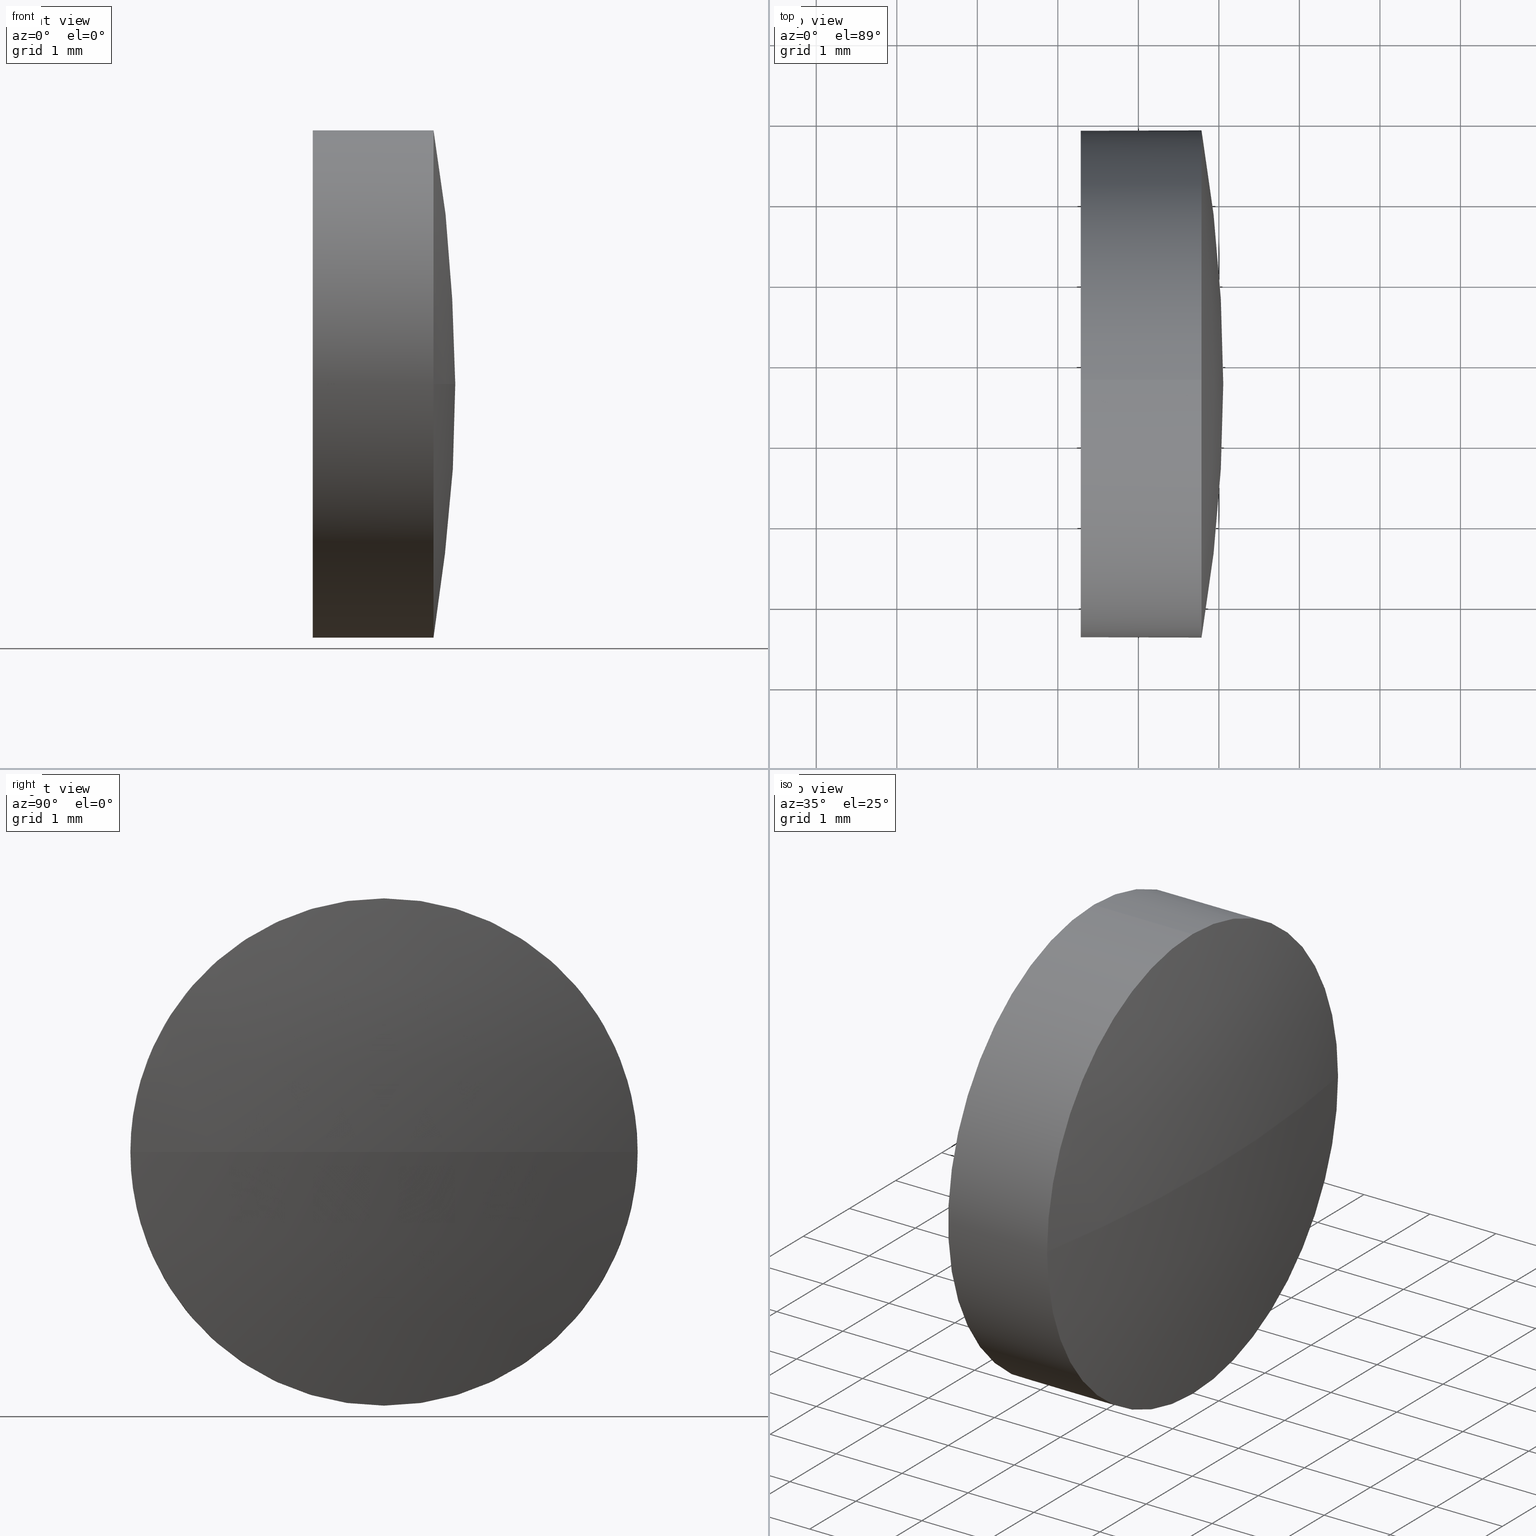
[diagram: canonical four-view strip — front | top / right | iso, engineering-drawing reading convention]
A machine part, canonical four-view strip (front | top / right | iso — engineering-drawing reading convention). The complete STEP part file that produces these views, byte-faithful:
ISO-10303-21;
HEADER;
FILE_DESCRIPTION (( 'STEP AP214' ),
    '1' );
FILE_NAME ('100354.STEP',
    '2019-06-03T04:02:27',
    ( '' ),
    ( '' ),
    'SwSTEP 2.0',
    'SolidWorks 2016',
    '' );
FILE_SCHEMA (( 'AUTOMOTIVE_DESIGN' ));
ENDSEC;

DATA;
#1 = ORIENTED_EDGE ( 'NONE', *, *, #84, .T. ) ;
#2 = CIRCLE ( 'NONE', #60, 3.149999999999999900 ) ;
#3 = FACE_OUTER_BOUND ( 'NONE', #4, .T. ) ;
#4 = EDGE_LOOP ( 'NONE', ( #1, #29, #98, #81, #142 ) ) ;
#5 = ORIENTED_EDGE ( 'NONE', *, *, #44, .T. ) ;
#6 = AXIS2_PLACEMENT_3D ( 'NONE', #137, #159, #149 ) ;
#7 = DIRECTION ( 'NONE',  ( 0.0000000000000000000, 0.0000000000000000000, 1.000000000000000000 ) ) ;
#8 = CARTESIAN_POINT ( 'NONE',  ( 443.4237683568735000, 32.74152775011270900, 0.0000000000000000000 ) ) ;
#9 = ORIENTED_EDGE ( 'NONE', *, *, #172, .F. ) ;
#10 = ORIENTED_EDGE ( 'NONE', *, *, #96, .F. ) ;
#11 = EDGE_CURVE ( 'NONE', #151, #38, #21, .T. ) ;
#12 = DIRECTION ( 'NONE',  ( -1.000000000000000000, -0.0000000000000000000, -0.0000000000000000000 ) ) ;
#13 = APPLICATION_CONTEXT ( 'automotive_design' ) ;
#14 = FILL_AREA_STYLE ('',( #40 ) ) ;
#15 = UNCERTAINTY_MEASURE_WITH_UNIT (LENGTH_MEASURE( 1.000000000000000100E-005 ), #154, 'distance_accuracy_value', 'NONE');
#16 = DIRECTION ( 'NONE',  ( 0.0000000000000000000, -1.000000000000000000, 0.0000000000000000000 ) ) ;
#17 = ORIENTED_EDGE ( 'NONE', *, *, #103, .T. ) ;
#18 = FACE_OUTER_BOUND ( 'NONE', #166, .T. ) ;
#19 = PRODUCT_DEFINITION_CONTEXT ( 'detailed design', #156, 'design' ) ;
#20 =( NAMED_UNIT ( * ) SI_UNIT ( $, .STERADIAN. ) SOLID_ANGLE_UNIT ( ) );
#21 = CIRCLE ( 'NONE', #115, 18.51000000000007600 ) ;
#22 = CARTESIAN_POINT ( 'NONE',  ( 444.2844064456223800, 32.74152775011270900, 0.0000000000000000000 ) ) ;
#23 = VERTEX_POINT ( 'NONE', #55 ) ;
#24 = DIRECTION ( 'NONE',  ( 0.0000000000000000000, 0.0000000000000000000, 1.000000000000000000 ) ) ;
#25 = CARTESIAN_POINT ( 'NONE',  ( 0.0000000000000000000, 0.0000000000000000000, 0.0000000000000000000 ) ) ;
#26 = AXIS2_PLACEMENT_3D ( 'NONE', #30, #100, #145 ) ;
#27 = PRODUCT_DEFINITION ( 'δ֪', '', #36, #19 ) ;
#28 = SURFACE_SIDE_STYLE ('',( #31 ) ) ;
#29 = ORIENTED_EDGE ( 'NONE', *, *, #96, .T. ) ;
#30 = CARTESIAN_POINT ( 'NONE',  ( 427.5444064456223100, 32.74152775011280200, 0.0000000000000000000 ) ) ;
#31 = SURFACE_STYLE_FILL_AREA ( #14 ) ;
#32 = CARTESIAN_POINT ( 'NONE',  ( 427.5444064456223100, 32.74152775011280200, 0.0000000000000000000 ) ) ;
#33 = CARTESIAN_POINT ( 'NONE',  ( 444.2844064456223800, 32.74152775011270900, 0.0000000000000000000 ) ) ;
#34 = SURFACE_STYLE_FILL_AREA ( #148 ) ;
#35 = FACE_OUTER_BOUND ( 'NONE', #157, .T. ) ;
#36 = PRODUCT_DEFINITION_FORMATION_WITH_SPECIFIED_SOURCE ( '�κ�', '', #167, .NOT_KNOWN. ) ;
#37 = ORIENTED_EDGE ( 'NONE', *, *, #75, .T. ) ;
#38 = VERTEX_POINT ( 'NONE', #134 ) ;
#39 = CARTESIAN_POINT ( 'NONE',  ( 445.7844064456223800, 32.74152775011270900, 0.0000000000000000000 ) ) ;
#40 = FILL_AREA_STYLE_COLOUR ( '', #71 ) ;
#41 = DIRECTION ( 'NONE',  ( -1.000000000000000000, -0.0000000000000000000, -0.0000000000000000000 ) ) ;
#42 = ORIENTED_EDGE ( 'NONE', *, *, #103, .F. ) ;
#43 = VECTOR ( 'NONE', #74, 1000.000000000000000 ) ;
#44 = EDGE_CURVE ( 'NONE', #133, #86, #2, .T. ) ;
#45 = UNCERTAINTY_MEASURE_WITH_UNIT (LENGTH_MEASURE( 1.000000000000000100E-005 ), #89, 'distance_accuracy_value', 'NONE');
#46 = ORIENTED_EDGE ( 'NONE', *, *, #65, .T. ) ;
#47 = SURFACE_STYLE_USAGE ( .BOTH. , #53 ) ;
#48 = LINE ( 'NONE', #161, #43 ) ;
#49 = CARTESIAN_POINT ( 'NONE',  ( 445.7844064456223800, 32.74152775011270900, -3.149999999999999900 ) ) ;
#50 = CYLINDRICAL_SURFACE ( 'NONE', #120, 3.149999999999999900 ) ;
#51 = DIRECTION ( 'NONE',  ( -1.000000000000000000, -0.0000000000000000000, -0.0000000000000000000 ) ) ;
#52 = VERTEX_POINT ( 'NONE', #101 ) ;
#53 = SURFACE_SIDE_STYLE ('',( #34 ) ) ;
#54 = DIRECTION ( 'NONE',  ( 0.0000000000000000000, 0.0000000000000000000, 1.000000000000000000 ) ) ;
#55 = CARTESIAN_POINT ( 'NONE',  ( 445.7844064456223800, 32.74152775011270900, 3.149999999999999900 ) ) ;
#56 = CIRCLE ( 'NONE', #121, 3.149999999999999900 ) ;
#57 = ORIENTED_EDGE ( 'NONE', *, *, #90, .F. ) ;
#58 = CARTESIAN_POINT ( 'NONE',  ( 443.4237683568735000, 32.74152775011270900, 0.0000000000000000000 ) ) ;
#59 = PLANE ( 'NONE',  #153 ) ;
#60 = AXIS2_PLACEMENT_3D ( 'NONE', #33, #41, #87 ) ;
#61 = EDGE_LOOP ( 'NONE', ( #180, #17, #104, #123 ) ) ;
#62 =( LENGTH_UNIT ( ) NAMED_UNIT ( * ) SI_UNIT ( .MILLI., .METRE. ) );
#63 = ADVANCED_FACE ( 'NONE', ( #82 ), #140, .T. ) ;
#64 = DIRECTION ( 'NONE',  ( 0.0000000000000000000, 0.0000000000000000000, 1.000000000000000000 ) ) ;
#65 = EDGE_CURVE ( 'NONE', #23, #133, #169, .T. ) ;
#66 = ADVANCED_FACE ( 'NONE', ( #35 ), #158, .T. ) ;
#67 = FACE_OUTER_BOUND ( 'NONE', #99, .T. ) ;
#68 =( GEOMETRIC_REPRESENTATION_CONTEXT ( 3 ) GLOBAL_UNCERTAINTY_ASSIGNED_CONTEXT ( ( #117 ) ) GLOBAL_UNIT_ASSIGNED_CONTEXT ( ( #62, #178, #92 ) ) REPRESENTATION_CONTEXT ( 'NONE', 'WORKASPACE' ) );
#69 = DIRECTION ( 'NONE',  ( -1.000000000000000000, -0.0000000000000000000, -0.0000000000000000000 ) ) ;
#70 = PRODUCT_RELATED_PRODUCT_CATEGORY ( 'part', '', ( #167 ) ) ;
#71 = COLOUR_RGB ( '',1.000000000000000000, 1.000000000000000000, 1.000000000000000000 ) ;
#72 = ORIENTED_EDGE ( 'NONE', *, *, #75, .F. ) ;
#73 = VECTOR ( 'NONE', #69, 1000.000000000000000 ) ;
#74 = DIRECTION ( 'NONE',  ( -1.000000000000000000, -0.0000000000000000000, -0.0000000000000000000 ) ) ;
#75 = EDGE_CURVE ( 'NONE', #86, #133, #56, .T. ) ;
#76 = AXIS2_PLACEMENT_3D ( 'NONE', #8, #112, #24 ) ;
#77 = CIRCLE ( 'NONE', #94, 3.149999999999999900 ) ;
#78 = ADVANCED_BREP_SHAPE_REPRESENTATION ( '100354', ( #135, #185 ), #106 ) ;
#79 = CARTESIAN_POINT ( 'NONE',  ( 445.7844064456223800, 32.74152775011270900, 0.0000000000000000000 ) ) ;
#80 = DIRECTION ( 'NONE',  ( -1.000000000000000000, -0.0000000000000000000, -0.0000000000000000000 ) ) ;
#81 = ORIENTED_EDGE ( 'NONE', *, *, #65, .F. ) ;
#82 = FACE_OUTER_BOUND ( 'NONE', #61, .T. ) ;
#83 = PRODUCT_CONTEXT ( 'NONE', #13, 'mechanical' ) ;
#84 = EDGE_CURVE ( 'NONE', #38, #175, #102, .T. ) ;
#85 = DIRECTION ( 'NONE',  ( 0.0000000000000000000, 0.0000000000000000000, 1.000000000000000000 ) ) ;
#86 = VERTEX_POINT ( 'NONE', #186 ) ;
#87 = DIRECTION ( 'NONE',  ( 0.0000000000000000000, 0.0000000000000000000, 1.000000000000000000 ) ) ;
#88 = ORIENTED_EDGE ( 'NONE', *, *, #11, .T. ) ;
#89 =( LENGTH_UNIT ( ) NAMED_UNIT ( * ) SI_UNIT ( .MILLI., .METRE. ) );
#90 = EDGE_CURVE ( 'NONE', #52, #23, #113, .T. ) ;
#91 =( NAMED_UNIT ( * ) PLANE_ANGLE_UNIT ( ) SI_UNIT ( $, .RADIAN. ) );
#92 =( NAMED_UNIT ( * ) SI_UNIT ( $, .STERADIAN. ) SOLID_ANGLE_UNIT ( ) );
#93 = DIRECTION ( 'NONE',  ( -1.000000000000000000, -0.0000000000000000000, -0.0000000000000000000 ) ) ;
#94 = AXIS2_PLACEMENT_3D ( 'NONE', #79, #12, #64 ) ;
#95 = DIRECTION ( 'NONE',  ( 0.0000000000000000000, 0.0000000000000000000, 1.000000000000000000 ) ) ;
#96 = EDGE_CURVE ( 'NONE', #175, #86, #48, .T. ) ;
#97 = MECHANICAL_DESIGN_GEOMETRIC_PRESENTATION_REPRESENTATION (  '', ( #147 ), #131 ) ;
#98 = ORIENTED_EDGE ( 'NONE', *, *, #44, .F. ) ;
#99 = EDGE_LOOP ( 'NONE', ( #5, #37 ) ) ;
#100 = DIRECTION ( 'NONE',  ( 0.0000000000000000000, 0.0000000000000000000, 1.000000000000000000 ) ) ;
#101 = CARTESIAN_POINT ( 'NONE',  ( 445.7844064456223800, 29.59152775011279200, 0.0000000000000000000 ) ) ;
#102 = CIRCLE ( 'NONE', #130, 3.149999999999999900 ) ;
#103 = EDGE_CURVE ( 'NONE', #151, #52, #126, .T. ) ;
#104 = ORIENTED_EDGE ( 'NONE', *, *, #163, .F. ) ;
#105 = DIRECTION ( 'NONE',  ( 0.0000000000000000000, 0.0000000000000000000, -1.000000000000000000 ) ) ;
#106 =( GEOMETRIC_REPRESENTATION_CONTEXT ( 3 ) GLOBAL_UNCERTAINTY_ASSIGNED_CONTEXT ( ( #45 ) ) GLOBAL_UNIT_ASSIGNED_CONTEXT ( ( #89, #91, #20 ) ) REPRESENTATION_CONTEXT ( 'NONE', 'WORKASPACE' ) );
#107 = AXIS2_PLACEMENT_3D ( 'NONE', #143, #85, #16 ) ;
#108 = COLOUR_RGB ( '',1.000000000000000000, 1.000000000000000000, 1.000000000000000000 ) ;
#109 = PRESENTATION_LAYER_ASSIGNMENT (  '', '', ( #147 ) ) ;
#110 = DIRECTION ( 'NONE',  ( 0.0000000000000000000, 0.0000000000000000000, 1.000000000000000000 ) ) ;
#111 = CARTESIAN_POINT ( 'NONE',  ( 445.7844064456223800, 32.74152775011270900, 0.0000000000000000000 ) ) ;
#112 = DIRECTION ( 'NONE',  ( -1.000000000000000000, -0.0000000000000000000, -0.0000000000000000000 ) ) ;
#113 = CIRCLE ( 'NONE', #184, 3.149999999999999900 ) ;
#114 = SURFACE_STYLE_USAGE ( .BOTH. , #28 ) ;
#115 = AXIS2_PLACEMENT_3D ( 'NONE', #32, #171, #119 ) ;
#116 = DIRECTION ( 'NONE',  ( 1.000000000000000000, 0.0000000000000000000, 0.0000000000000000000 ) ) ;
#117 = UNCERTAINTY_MEASURE_WITH_UNIT (LENGTH_MEASURE( 1.000000000000000100E-005 ), #62, 'distance_accuracy_value', 'NONE');
#118 = DIRECTION ( 'NONE',  ( 0.0000000000000000000, 0.0000000000000000000, 1.000000000000000000 ) ) ;
#119 = DIRECTION ( 'NONE',  ( 0.0000000000000000000, -1.000000000000000000, -1.224646799147353200E-016 ) ) ;
#120 = AXIS2_PLACEMENT_3D ( 'NONE', #58, #80, #95 ) ;
#121 = AXIS2_PLACEMENT_3D ( 'NONE', #165, #128, #110 ) ;
#122 = PRESENTATION_LAYER_ASSIGNMENT (  '', '', ( #155 ) ) ;
#123 = ORIENTED_EDGE ( 'NONE', *, *, #84, .F. ) ;
#124 = DIRECTION ( 'NONE',  ( 1.000000000000000000, 0.0000000000000000000, 0.0000000000000000000 ) ) ;
#125 = DIRECTION ( 'NONE',  ( -1.000000000000000000, -0.0000000000000000000, -0.0000000000000000000 ) ) ;
#126 = CIRCLE ( 'NONE', #6, 18.51000000000008300 ) ;
#127 = ADVANCED_FACE ( 'NONE', ( #67 ), #59, .F. ) ;
#128 = DIRECTION ( 'NONE',  ( -1.000000000000000000, -0.0000000000000000000, -0.0000000000000000000 ) ) ;
#129 = CIRCLE ( 'NONE', #174, 3.149999999999999900 ) ;
#130 = AXIS2_PLACEMENT_3D ( 'NONE', #39, #51, #54 ) ;
#131 =( GEOMETRIC_REPRESENTATION_CONTEXT ( 3 ) GLOBAL_UNCERTAINTY_ASSIGNED_CONTEXT ( ( #15 ) ) GLOBAL_UNIT_ASSIGNED_CONTEXT ( ( #154, #170, #141 ) ) REPRESENTATION_CONTEXT ( 'NONE', 'WORKASPACE' ) );
#132 = APPLICATION_PROTOCOL_DEFINITION ( 'draft international standard', 'automotive_design', 1998, #156 ) ;
#133 = VERTEX_POINT ( 'NONE', #139 ) ;
#134 = CARTESIAN_POINT ( 'NONE',  ( 445.7844064456223800, 35.89152775011271500, 3.857637417314053200E-016 ) ) ;
#135 = MANIFOLD_SOLID_BREP ( '��ת2', #136 ) ;
#136 = CLOSED_SHELL ( 'NONE', ( #183, #66, #63, #152, #127 ) ) ;
#137 = CARTESIAN_POINT ( 'NONE',  ( 427.5444064456223100, 32.74152775011280200, 0.0000000000000000000 ) ) ;
#138 = ORIENTED_EDGE ( 'NONE', *, *, #163, .T. ) ;
#139 = CARTESIAN_POINT ( 'NONE',  ( 444.2844064456223800, 32.74152775011270900, 3.149999999999999900 ) ) ;
#140 = SPHERICAL_SURFACE ( 'NONE', #26, 18.51000000000007600 ) ;
#141 =( NAMED_UNIT ( * ) SI_UNIT ( $, .STERADIAN. ) SOLID_ANGLE_UNIT ( ) );
#142 = ORIENTED_EDGE ( 'NONE', *, *, #172, .T. ) ;
#143 = CARTESIAN_POINT ( 'NONE',  ( 427.5444064456223100, 32.74152775011280200, 0.0000000000000000000 ) ) ;
#144 = PRESENTATION_STYLE_ASSIGNMENT (( #114 ) ) ;
#145 = DIRECTION ( 'NONE',  ( 0.0000000000000000000, -1.000000000000000000, 0.0000000000000000000 ) ) ;
#146 = CARTESIAN_POINT ( 'NONE',  ( 443.4237683568735000, 32.74152775011270900, 3.149999999999999900 ) ) ;
#147 = STYLED_ITEM ( 'NONE', ( #144 ), #78 ) ;
#148 = FILL_AREA_STYLE ('',( #181 ) ) ;
#149 = DIRECTION ( 'NONE',  ( -1.000000000000000000, 0.0000000000000000000, 0.0000000000000000000 ) ) ;
#150 = CARTESIAN_POINT ( 'NONE',  ( 446.0544064456223600, 32.74152775011280200, 0.0000000000000000000 ) ) ;
#151 = VERTEX_POINT ( 'NONE', #150 ) ;
#152 = ADVANCED_FACE ( 'NONE', ( #18 ), #160, .T. ) ;
#153 = AXIS2_PLACEMENT_3D ( 'NONE', #22, #124, #105 ) ;
#154 =( LENGTH_UNIT ( ) NAMED_UNIT ( * ) SI_UNIT ( .MILLI., .METRE. ) );
#155 = STYLED_ITEM ( 'NONE', ( #179 ), #135 ) ;
#156 = APPLICATION_CONTEXT ( 'automotive_design' ) ;
#157 = EDGE_LOOP ( 'NONE', ( #42, #88, #9, #57 ) ) ;
#158 = SPHERICAL_SURFACE ( 'NONE', #107, 18.51000000000007600 ) ;
#159 = DIRECTION ( 'NONE',  ( 0.0000000000000000000, 0.0000000000000000000, -1.000000000000000000 ) ) ;
#160 = CYLINDRICAL_SURFACE ( 'NONE', #76, 3.149999999999999900 ) ;
#161 = CARTESIAN_POINT ( 'NONE',  ( 443.4237683568735000, 32.74152775011270900, -3.149999999999999900 ) ) ;
#162 = SHAPE_DEFINITION_REPRESENTATION ( #177, #78 ) ;
#163 = EDGE_CURVE ( 'NONE', #175, #52, #77, .T. ) ;
#164 = MECHANICAL_DESIGN_GEOMETRIC_PRESENTATION_REPRESENTATION (  '', ( #155 ), #68 ) ;
#165 = CARTESIAN_POINT ( 'NONE',  ( 444.2844064456223800, 32.74152775011270900, 0.0000000000000000000 ) ) ;
#166 = EDGE_LOOP ( 'NONE', ( #10, #138, #173, #46, #72 ) ) ;
#167 = PRODUCT ( '100354', '100354', '', ( #83 ) ) ;
#168 = APPLICATION_PROTOCOL_DEFINITION ( 'draft international standard', 'automotive_design', 1998, #13 ) ;
#169 = LINE ( 'NONE', #146, #73 ) ;
#170 =( NAMED_UNIT ( * ) PLANE_ANGLE_UNIT ( ) SI_UNIT ( $, .RADIAN. ) );
#171 = DIRECTION ( 'NONE',  ( 0.0000000000000000000, -1.224646799147353200E-016, 1.000000000000000000 ) ) ;
#172 = EDGE_CURVE ( 'NONE', #23, #38, #129, .T. ) ;
#173 = ORIENTED_EDGE ( 'NONE', *, *, #90, .T. ) ;
#174 = AXIS2_PLACEMENT_3D ( 'NONE', #176, #93, #182 ) ;
#175 = VERTEX_POINT ( 'NONE', #49 ) ;
#176 = CARTESIAN_POINT ( 'NONE',  ( 445.7844064456223800, 32.74152775011270900, 0.0000000000000000000 ) ) ;
#177 = PRODUCT_DEFINITION_SHAPE ( 'NONE', 'NONE',  #27 ) ;
#178 =( NAMED_UNIT ( * ) PLANE_ANGLE_UNIT ( ) SI_UNIT ( $, .RADIAN. ) );
#179 = PRESENTATION_STYLE_ASSIGNMENT (( #47 ) ) ;
#180 = ORIENTED_EDGE ( 'NONE', *, *, #11, .F. ) ;
#181 = FILL_AREA_STYLE_COLOUR ( '', #108 ) ;
#182 = DIRECTION ( 'NONE',  ( 0.0000000000000000000, 0.0000000000000000000, 1.000000000000000000 ) ) ;
#183 = ADVANCED_FACE ( 'NONE', ( #3 ), #50, .T. ) ;
#184 = AXIS2_PLACEMENT_3D ( 'NONE', #111, #125, #7 ) ;
#185 = AXIS2_PLACEMENT_3D ( 'NONE', #25, #118, #116 ) ;
#186 = CARTESIAN_POINT ( 'NONE',  ( 444.2844064456223800, 32.74152775011270900, -3.149999999999999900 ) ) ;
ENDSEC;
END-ISO-10303-21;
